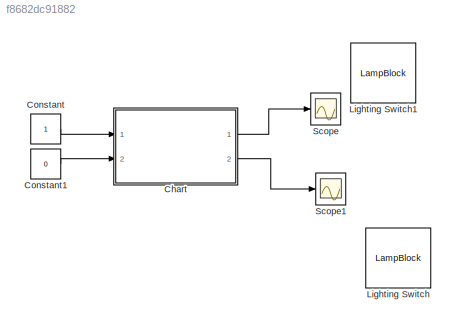
MODEL slx_f8682dc91882
KIND model
CONFIG AbsTol = auto
CONFIG EnableMultiTasking = off
CONFIG FixedStep = auto
CONFIG MaxStep = auto
CONFIG MinStep = auto
CONFIG RelTol = 1e-3
CONFIG SampleTimeConstraint = Unconstrained
CONFIG SolverName = VariableStepAuto
CONFIG StartTime = 0.0
CONFIG StopTime = 10.0
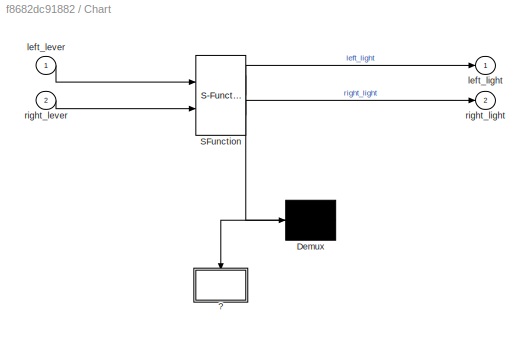
BLOCK [SubSystem] Chart
  ErrorFcn = Stateflow.Translate.translate
  PermitHierarchicalResolution = ExplicitOnly
  Ports = [2, 2]
  RequestExecContextInheritance = off
  SFBlockType = Chart
  TreatAsAtomicUnit = on
BLOCK [Demux] Chart/ Demux 
  Outputs = 1
  Ports = [1, 1]
BLOCK [S-Function] Chart/ SFunction 
  EnableBusSupport = on
  FunctionName = sf_sfun
  PortCounts = [2 3]
  Ports = [2, 3]
  SFcnIsStateOwnerBlock = off
  SFunctionDeploymentMode = off
  Tag = Stateflow S-Function 3
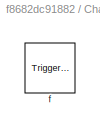
BLOCK [SubSystem] Chart/?
  Ports = [0, 0, 0, 1]
  PreDeleteFcn = Stateflow.SLINSF.SimulinkMan.removePreDeleteFcn
  RequestExecContextInheritance = off
  UndoDeleteFcn = Stateflow.SLINSF.SimulinkMan.restorePreDeleteFcn
BLOCK [TriggerPort] Chart/?/f
  CopyFcn = Stateflow.SLINSF.SimulinkMan.removeBlockPreDeleteFcn
  Ports = []
  PreDeleteFcn = Stateflow.SLINSF.SimulinkMan.unsafePredeleteFcn
  StatesWhenEnabling = held
  TriggerType = function-call
  VariantControl = (inherit)
BLOCK [Inport] Chart/left_lever
BLOCK [Outport] Chart/left_light
BLOCK [Inport] Chart/right_lever
  Port = 2
BLOCK [Outport] Chart/right_light
  Port = 2
BLOCK [Constant] Constant
  NameLocation = left
BLOCK [Constant] Constant1
  NameLocation = left
  Value = 0
BLOCK [LampBlock] Lighting Switch
  Icon = LightingSwitch
BLOCK [LampBlock] Lighting Switch1
  Icon = LightingSwitch
BLOCK [Scope] Scope
  Floating = off
  NumInputPorts = 1
  Ports = [1]
  ScopeSpecificationString = Simulink.scopes.TimeScopeBlockCfg('CurrentConfiguration', extmgr.ConfigurationSet(extmgr.Configuration('Core','General UI',true),extmgr.Configuration('Core','Source UI',true),extmgr.Configuration('Sources','WiredSimulink',true),extmgr.Configuration('Visuals','Time Domain',true,'SerializedDisplays',{struct('MinYLimReal','-0.125','MaxYLimReal','1.125','YLabelReal','','MinYLimMag','0.00000','MaxYLimM...<+1985ch>
BLOCK [Scope] Scope1
  Floating = off
  NumInputPorts = 1
  Ports = [1]
  ScopeSpecificationString = Simulink.scopes.TimeScopeBlockCfg('CurrentConfiguration', extmgr.ConfigurationSet(extmgr.Configuration('Core','General UI',true),extmgr.Configuration('Core','Source UI',true),extmgr.Configuration('Sources','WiredSimulink',true,'DataLoggingVariableName','ScopeData1'),extmgr.Configuration('Visuals','Time Domain',true,'SerializedDisplays',{struct('MinYLimReal','-1.00000','MaxYLimReal','1.00000','YLab...<+2031ch>
LINE Chart:1 -> Scope:1
LINE Chart:2 -> Scope1:1
LINE Constant1:1 -> Chart:2
LINE Constant:1 -> Chart:1
CHART Chart states=8 transitions=11
  STATE_LABEL 'OFF\nentry:\nright_light=0;\nleft_light=0;'
  STATE_LABEL '?'
  STATE_LABEL 'LEFT\n'
  STATE_LABEL 'ON\nentry:\nleft_light=1;\n'
  STATE_LABEL 'OFF\nentry:\nleft_light=0;'
  STATE_LABEL 'after(0.5,sec)'
  STATE_LABEL 'after(0.5,sec)'
  STATE_LABEL 'ON\nentry:\nleft_light=1;\n'
  STATE_LABEL 'OFF\nentry:\nleft_light=0;'
  STATE_LABEL 'RIGHT\n'
  STATE_LABEL 'ON\nentry:\nright_light=1;\n'
  STATE_LABEL 'OFF\nentry:\nright_light=0;'
  STATE_LABEL 'after(0.5,sec)'
  STATE_LABEL 'after(0.5,sec)'
  STATE_LABEL 'ON\nentry:\nright_light=1;\n'
  STATE_LABEL 'OFF\nentry:\nright_light=0;'
CHART  states=0 transitions=0
